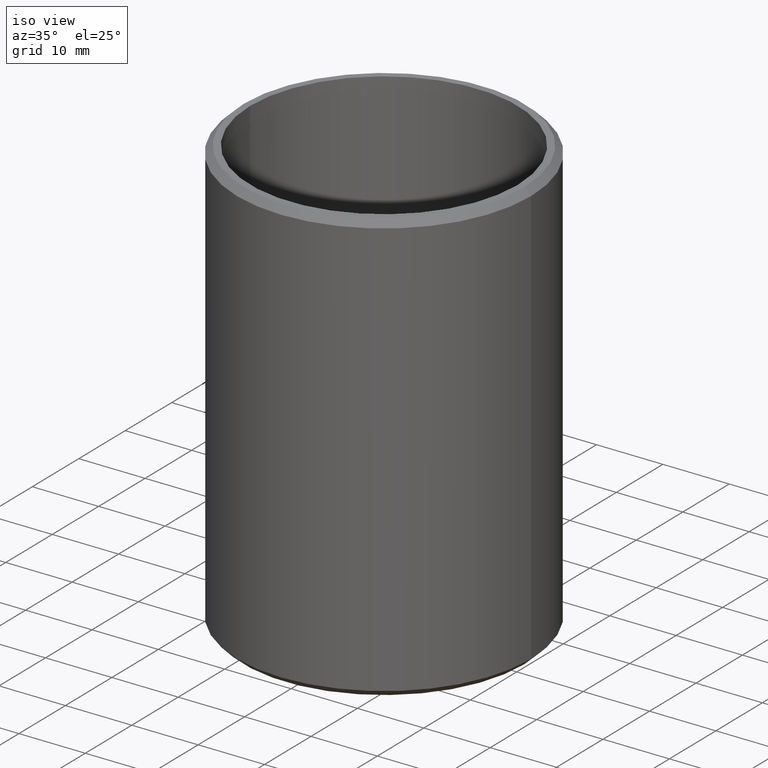
[diagram: clean part render]
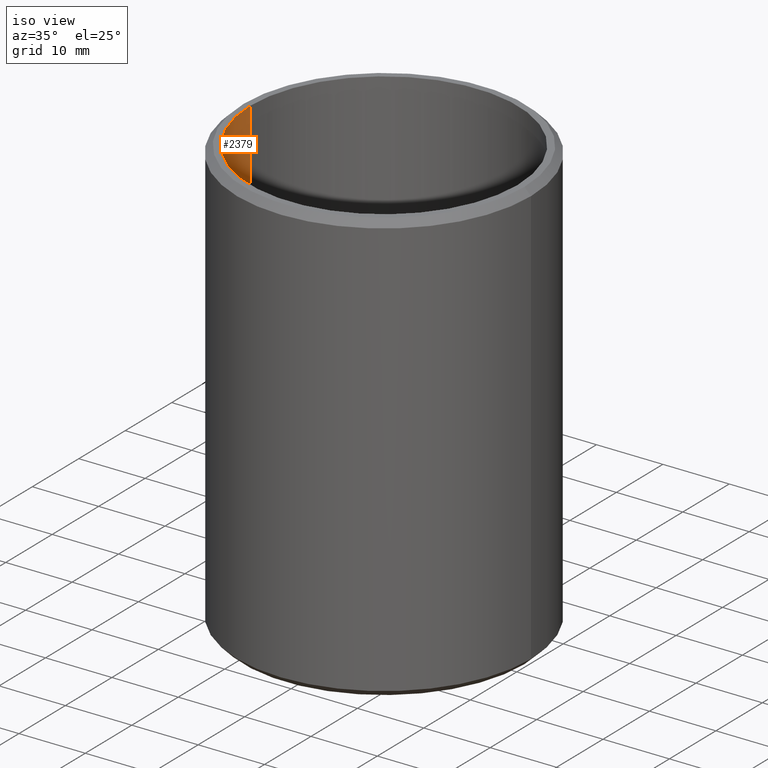
[diagram: same view with one face highlighted and labeled with its STEP entity id]
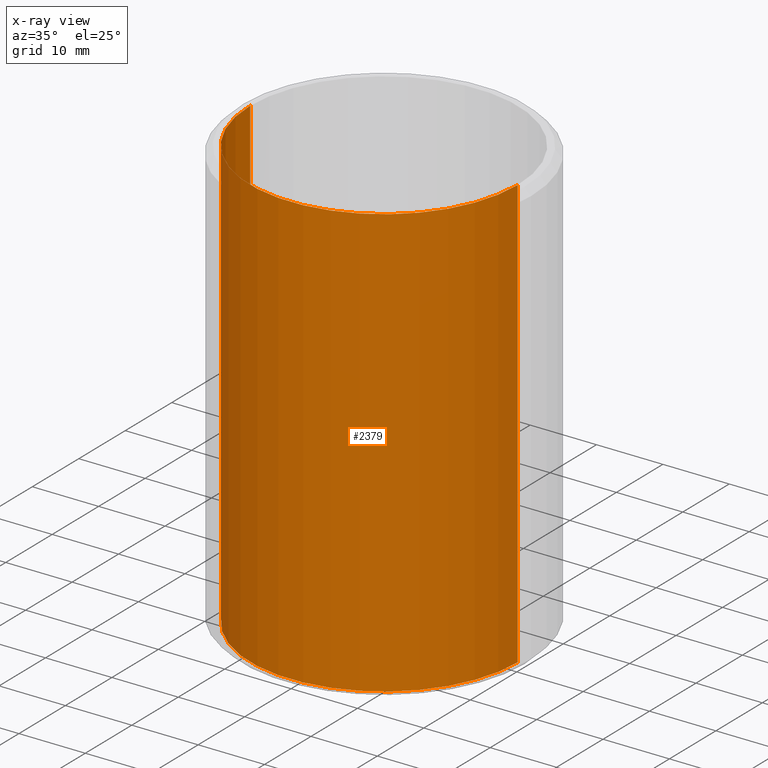
[diagram: x-ray of the same camera — body ghosted, the highlighted face saturated]
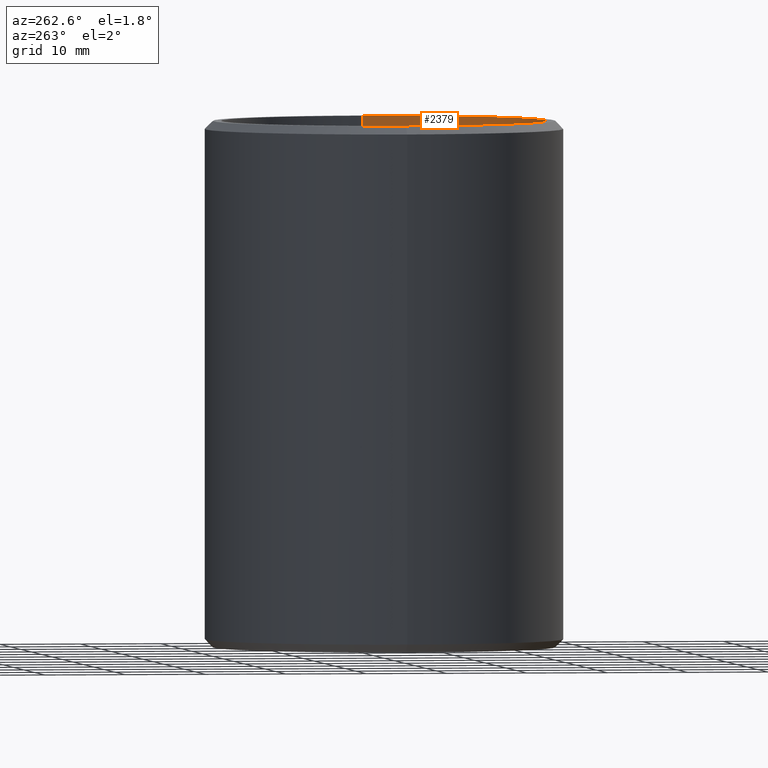
[diagram: same view with one face highlighted and labeled with its STEP entity id]
A machine part, iso view. The second image highlights one B-rep face of the part: STEP entity #2379.
The next image is the same camera in x-ray: the body ghosted, the highlighted face saturated — about 0% of this face is hidden behind the body in this view.
A second angle (auxiliary view) of the same face is appended — the face is thin or edge-on in the first view.
In plain terms, the highlighted cylindrical surface (partial cylindrical patch) has radius 20.15 mm, axis along (-0, -0, -1).
Its self-contained STEP definition (entity closure, byte-faithful):
#38 = CARTESIAN_POINT ( 'NONE',  ( 20.15000000000000200, 2.467663300281916900E-015, 32.50000000000000000 ) ) ;
#50 = FACE_OUTER_BOUND ( 'NONE', #427, .T. ) ;
#52 = ORIENTED_EDGE ( 'NONE', *, *, #9156, .T. ) ;
#63 = B_SPLINE_CURVE_WITH_KNOTS ( 'NONE', 3,
 ( #435, #3930, #4584, #1239 ),
 .UNSPECIFIED., .F., .F.,
 ( 4, 4 ),
 ( 0.0000000000000000000, 0.0001645194072461675800 ),
 .UNSPECIFIED. ) ;
#80 = LINE ( 'NONE', #677, #9781 ) ;
#89 = VECTOR ( 'NONE', #1242, 1000.000000000000000 ) ;
#120 = CARTESIAN_POINT ( 'NONE',  ( -20.14999999999999900, -1.551054894538229500E-016, 32.50000000000000000 ) ) ;
#127 = DIRECTION ( 'NONE',  ( -0.0000000000000000000, -0.0000000000000000000, -1.000000000000000000 ) ) ;
#131 = EDGE_CURVE ( 'NONE', #8170, #1964, #852, .T. ) ;
#153 = CARTESIAN_POINT ( 'NONE',  ( -20.14999999999999900, -1.551054894538230000E-016, 0.4324919871794909400 ) ) ;
#202 = VECTOR ( 'NONE', #2505, 1000.000000000000000 ) ;
#247 = ORIENTED_EDGE ( 'NONE', *, *, #2295, .F. ) ;
#324 = ORIENTED_EDGE ( 'NONE', *, *, #953, .T. ) ;
#332 = VECTOR ( 'NONE', #10108, 1000.000000000000000 ) ;
#340 = LINE ( 'NONE', #8881, #10731 ) ;
#427 = EDGE_LOOP ( 'NONE', ( #8159, #7741, #9570, #8017, #1892, #4356, #10506, #805, #3978, #52, #10746, #496, #7833, #6111, #10402, #9390, #2664, #8285, #4130, #247, #4022, #8741, #1336, #3733, #1304, #9673, #9023, #9043, #5617, #324, #4254, #5936, #8752, #2734, #583, #8421, #3750, #2469, #7663, #1928, #10694, #4709, #4959, #9430, #9618, #6819, #8871, #8601, #7419, #4971, #9617, #2637, #2279, #1713 ) ) ;
#435 = CARTESIAN_POINT ( 'NONE',  ( -20.14997144836235800, -0.03392094017094032800, -8.557882194845083400 ) ) ;
#448 = DIRECTION ( 'NONE',  ( 0.0000000000000000000, 0.0000000000000000000, 1.000000000000000000 ) ) ;
#452 = CARTESIAN_POINT ( 'NONE',  ( -20.14999999999999900, -1.551054894538229500E-016, 32.50000000000000000 ) ) ;
#496 = ORIENTED_EDGE ( 'NONE', *, *, #5192, .T. ) ;
#552 = CARTESIAN_POINT ( 'NONE',  ( -20.14999286209438300, -0.01696047008547024000, 3.066134982638891900 ) ) ;
#583 = ORIENTED_EDGE ( 'NONE', *, *, #3464, .T. ) ;
#597 = CARTESIAN_POINT ( 'NONE',  ( 0.0000000000000000000, 0.0000000000000000000, 32.50000000000000000 ) ) ;
#621 = CARTESIAN_POINT ( 'NONE',  ( -20.14999999999999900, -1.551054894538229500E-016, 8.912727029914528000 ) ) ;
#672 = DIRECTION ( 'NONE',  ( -0.0000000000000000000, -0.0000000000000000000, -1.000000000000000000 ) ) ;
#677 = CARTESIAN_POINT ( 'NONE',  ( -20.15000000000000200, 0.0000000000000000000, 32.50000000000000000 ) ) ;
#711 = DIRECTION ( 'NONE',  ( -0.0000000000000000000, -0.0000000000000000000, -1.000000000000000000 ) ) ;
#736 = CIRCLE ( 'NONE', #10193, 20.15000000000000200 ) ;
#758 = CARTESIAN_POINT ( 'NONE',  ( -20.14999286209438300, -0.01696047008547024000, 3.066134982638891900 ) ) ;
#760 = EDGE_CURVE ( 'NONE', #10067, #7401, #3185, .T. ) ;
#794 = AXIS2_PLACEMENT_3D ( 'NONE', #5901, #900, #6676 ) ;
#805 = ORIENTED_EDGE ( 'NONE', *, *, #9048, .T. ) ;
#811 = VECTOR ( 'NONE', #8329, 1000.000000000000000 ) ;
#834 = LINE ( 'NONE', #2320, #3713 ) ;
#852 = LINE ( 'NONE', #9220, #3465 ) ;
#871 = VERTEX_POINT ( 'NONE', #1807 ) ;
#900 = DIRECTION ( 'NONE',  ( -0.0000000000000000000, -0.0000000000000000000, -1.000000000000000000 ) ) ;
#953 = EDGE_CURVE ( 'NONE', #10138, #4212, #9780, .T. ) ;
#954 = DIRECTION ( 'NONE',  ( 0.0000000000000000000, 0.0000000000000000000, 1.000000000000000000 ) ) ;
#1034 = CARTESIAN_POINT ( 'NONE',  ( -20.14999286209438300, -0.01696047008547024000, 6.034217247596156000 ) ) ;
#1036 = CARTESIAN_POINT ( 'NONE',  ( -20.14999999999999900, -1.551054894538229500E-016, 6.775707799145304300 ) ) ;
#1052 = DIRECTION ( 'NONE',  ( 0.0000000000000000000, 0.0000000000000000000, 1.000000000000000000 ) ) ;
#1081 = LINE ( 'NONE', #1695, #9653 ) ;
#1171 = VERTEX_POINT ( 'NONE', #2079 ) ;
#1185 = VECTOR ( 'NONE', #9342, 1000.000000000000000 ) ;
#1187 = LINE ( 'NONE', #3349, #202 ) ;
#1197 = VECTOR ( 'NONE', #2135, 1000.000000000000000 ) ;
#1201 = LINE ( 'NONE', #2853, #3716 ) ;
#1215 = B_SPLINE_CURVE_WITH_KNOTS ( 'NONE', 3,
 ( #7137, #7884, #2100, #6395 ),
 .UNSPECIFIED., .F., .F.,
 ( 4, 4 ),
 ( 0.0003122492481902185000, 0.0004517216255971111000 ),
 .UNSPECIFIED. ) ;
#1217 = CARTESIAN_POINT ( 'NONE',  ( -20.14999999999999500, -1.225550795558565800E-016, -0.9890523481114827900 ) ) ;
#1239 = CARTESIAN_POINT ( 'NONE',  ( -20.15000000000001300, -6.753728266472703100E-013, -8.397296406759828400 ) ) ;
#1242 = DIRECTION ( 'NONE',  ( 0.0000000000000000000, 0.0000000000000000000, 1.000000000000000000 ) ) ;
#1288 = CARTESIAN_POINT ( 'NONE',  ( -20.14999999999999900, -0.01147758787933929700, 3.156757813504496500 ) ) ;
#1304 = ORIENTED_EDGE ( 'NONE', *, *, #10739, .F. ) ;
#1310 = CARTESIAN_POINT ( 'NONE',  ( -20.14999999999999900, -1.551054894538229500E-016, 5.249265491452992400 ) ) ;
#1336 = ORIENTED_EDGE ( 'NONE', *, *, #5031, .F. ) ;
#1349 = VECTOR ( 'NONE', #2421, 1000.000000000000000 ) ;
#1352 = DIRECTION ( 'NONE',  ( -0.0000000000000000000, -0.0000000000000000000, -1.000000000000000000 ) ) ;
#1364 = CARTESIAN_POINT ( 'NONE',  ( -20.14999999999999900, -1.551054894538230000E-016, -7.725494123931619900 ) ) ;
#1397 = DIRECTION ( 'NONE',  ( 1.000000000000000000, 0.0000000000000000000, 0.0000000000000000000 ) ) ;
#1460 = CARTESIAN_POINT ( 'NONE',  ( -20.14999999999999500, -0.02204698266551590600, -1.952746161208339400 ) ) ;
#1472 = EDGE_CURVE ( 'NONE', #6260, #4212, #1187, .T. ) ;
#1505 = CARTESIAN_POINT ( 'NONE',  ( -20.15000000000000200, 0.0000000000000000000, 32.50000000000000000 ) ) ;
#1508 = CARTESIAN_POINT ( 'NONE',  ( -20.14999380398186400, -0.01584145475456734400, 7.660271664747757100 ) ) ;
#1533 = CARTESIAN_POINT ( 'NONE',  ( -20.15000000000000200, -4.692922516791407000E-014, 2.928196923410093100 ) ) ;
#1603 = EDGE_CURVE ( 'NONE', #3290, #7401, #1848, .T. ) ;
#1635 = CARTESIAN_POINT ( 'NONE',  ( -20.15000000000000200, 0.0000000000000000000, 32.50000000000000000 ) ) ;
#1695 = CARTESIAN_POINT ( 'NONE',  ( -20.15000000000000200, 0.0000000000000000000, 32.50000000000000000 ) ) ;
#1702 = CARTESIAN_POINT ( 'NONE',  ( -20.15000000000000200, -4.695548318927895300E-014, 5.896279188367356200 ) ) ;
#1713 = ORIENTED_EDGE ( 'NONE', *, *, #7831, .F. ) ;
#1737 = VERTEX_POINT ( 'NONE', #3569 ) ;
#1766 = EDGE_CURVE ( 'NONE', #8533, #3064, #7933, .T. ) ;
#1767 = VERTEX_POINT ( 'NONE', #3742 ) ;
#1807 = CARTESIAN_POINT ( 'NONE',  ( -20.15000000000001300, -6.753728266472703100E-013, -8.397296406759828400 ) ) ;
#1820 = CARTESIAN_POINT ( 'NONE',  ( -20.14999999999999900, -1.551054894538230000E-016, 2.671274038461541400 ) ) ;
#1848 = LINE ( 'NONE', #1635, #8248 ) ;
#1864 = VERTEX_POINT ( 'NONE', #2799 ) ;
#1892 = ORIENTED_EDGE ( 'NONE', *, *, #10347, .T. ) ;
#1923 = CARTESIAN_POINT ( 'NONE',  ( -20.14997144836235800, -0.03392094017094032800, -8.557882194845083400 ) ) ;
#1928 = ORIENTED_EDGE ( 'NONE', *, *, #9026, .F. ) ;
#1944 = CARTESIAN_POINT ( 'NONE',  ( -20.14997144836235800, -0.03392094017094032800, -1.841536040998927600 ) ) ;
#1956 = VECTOR ( 'NONE', #672, 1000.000000000000000 ) ;
#1964 = VERTEX_POINT ( 'NONE', #1364 ) ;
#2070 = EDGE_CURVE ( 'NONE', #9325, #1767, #2618, .T. ) ;
#2079 = CARTESIAN_POINT ( 'NONE',  ( -20.14999999999999900, -1.551054894538229500E-016, -7.844217414529911300 ) ) ;
#2100 = CARTESIAN_POINT ( 'NONE',  ( -20.14999377879606300, -0.01587137689652232800, 3.019395627059516600 ) ) ;
#2135 = DIRECTION ( 'NONE',  ( -0.0000000000000000000, -0.0000000000000000000, -1.000000000000000000 ) ) ;
#2165 = CARTESIAN_POINT ( 'NONE',  ( -20.15000000000000900, 8.024103833841728600E-012, 7.753592224368534700 ) ) ;
#2212 = VERTEX_POINT ( 'NONE', #5060 ) ;
#2239 = LINE ( 'NONE', #6934, #10704 ) ;
#2279 = ORIENTED_EDGE ( 'NONE', *, *, #2397, .T. ) ;
#2295 = EDGE_CURVE ( 'NONE', #6399, #10463, #6038, .T. ) ;
#2311 = CARTESIAN_POINT ( 'NONE',  ( -20.15000000000000200, 0.0000000000000000000, -32.50000000000000000 ) ) ;
#2320 = CARTESIAN_POINT ( 'NONE',  ( -20.15000000000000200, 0.0000000000000000000, 32.50000000000000000 ) ) ;
#2333 = CARTESIAN_POINT ( 'NONE',  ( -20.15000000000000200, -3.381779041912794100E-016, -2.002959115374386600 ) ) ;
#2341 = CARTESIAN_POINT ( 'NONE',  ( -20.15000000000000900, 8.024103833841728600E-012, 7.753592224368534700 ) ) ;
#2377 = LINE ( 'NONE', #2596, #9666 ) ;
#2379 = ADVANCED_FACE ( 'NONE', ( #50 ), #3150, .F. ) ;
#2397 = EDGE_CURVE ( 'NONE', #2212, #8524, #3815, .T. ) ;
#2398 = CARTESIAN_POINT ( 'NONE',  ( -20.15000000000000200, 0.0000000000000000000, 32.50000000000000000 ) ) ;
#2421 = DIRECTION ( 'NONE',  ( -0.0000000000000000000, -0.0000000000000000000, -1.000000000000000000 ) ) ;
#2444 = CARTESIAN_POINT ( 'NONE',  ( -20.14999999999999900, -1.551054894538229500E-016, 1.161792200854702800 ) ) ;
#2469 = ORIENTED_EDGE ( 'NONE', *, *, #2070, .F. ) ;
#2505 = DIRECTION ( 'NONE',  ( -0.0000000000000000000, -0.0000000000000000000, -1.000000000000000000 ) ) ;
#2529 = EDGE_CURVE ( 'NONE', #8636, #3895, #6396, .T. ) ;
#2596 = CARTESIAN_POINT ( 'NONE',  ( -20.15000000000000200, 0.0000000000000000000, 32.50000000000000000 ) ) ;
#2597 = VERTEX_POINT ( 'NONE', #5443 ) ;
#2612 = LINE ( 'NONE', #9815, #5503 ) ;
#2618 = LINE ( 'NONE', #4905, #10294 ) ;
#2637 = ORIENTED_EDGE ( 'NONE', *, *, #8101, .F. ) ;
#2654 = DIRECTION ( 'NONE',  ( -0.0000000000000000000, -0.0000000000000000000, -1.000000000000000000 ) ) ;
#2664 = ORIENTED_EDGE ( 'NONE', *, *, #1603, .F. ) ;
#2734 = ORIENTED_EDGE ( 'NONE', *, *, #3427, .T. ) ;
#2751 = CARTESIAN_POINT ( 'NONE',  ( -20.14999999999999100, -6.751678446740345600E-013, -1.680950252913672600 ) ) ;
#2799 = CARTESIAN_POINT ( 'NONE',  ( -20.14999999999999900, -1.551054894538229500E-016, -5.198384081196577400 ) ) ;
#2819 = EDGE_CURVE ( 'NONE', #6487, #6167, #3430, .T. ) ;
#2853 = CARTESIAN_POINT ( 'NONE',  ( -20.14999999999999900, -1.551054894538229500E-016, 32.50000000000000000 ) ) ;
#2857 = DIRECTION ( 'NONE',  ( -0.0000000000000000000, -0.0000000000000000000, -1.000000000000000000 ) ) ;
#2889 = CARTESIAN_POINT ( 'NONE',  ( -20.14999368746909500, -0.01597987847093923500, 7.563818216957719700 ) ) ;
#2898 = CARTESIAN_POINT ( 'NONE',  ( -20.14999286209438300, -0.01696047008547024000, 6.034217247596156000 ) ) ;
#2903 = LINE ( 'NONE', #7197, #1197 ) ;
#2905 = CARTESIAN_POINT ( 'NONE',  ( -20.15000000000000200, 5.585788310942519100E-012, 3.200599436973382800 ) ) ;
#2924 = EDGE_CURVE ( 'NONE', #2597, #10271, #1081, .T. ) ;
#2970 = B_SPLINE_CURVE_WITH_KNOTS ( 'NONE', 3,
 ( #2333, #1460, #4925, #4044 ),
 .UNSPECIFIED., .F., .F.,
 ( 4, 4 ),
 ( 0.0007601041430060417400, 0.0009231148281855330100 ),
 .UNSPECIFIED. ) ;
#2976 = DIRECTION ( 'NONE',  ( 0.0000000000000000000, 0.0000000000000000000, 1.000000000000000000 ) ) ;
#2996 = CARTESIAN_POINT ( 'NONE',  ( -20.14999999999999900, -1.551054894538229500E-016, 5.520633012820516300 ) ) ;
#3001 = DIRECTION ( 'NONE',  ( -0.0000000000000000000, -0.0000000000000000000, -1.000000000000000000 ) ) ;
#3012 = VERTEX_POINT ( 'NONE', #5101 ) ;
#3030 = VECTOR ( 'NONE', #4374, 1000.000000000000000 ) ;
#3064 = VERTEX_POINT ( 'NONE', #3826 ) ;
#3106 = CARTESIAN_POINT ( 'NONE',  ( -20.15000000000000200, 0.0000000000000000000, 32.50000000000000000 ) ) ;
#3123 = DIRECTION ( 'NONE',  ( 0.0000000000000000000, 0.0000000000000000000, 1.000000000000000000 ) ) ;
#3125 = EDGE_CURVE ( 'NONE', #3290, #9786, #2970, .T. ) ;
#3150 = CYLINDRICAL_SURFACE ( 'NONE', #794, 20.15000000000000200 ) ;
#3175 = VECTOR ( 'NONE', #6134, 1000.000000000000000 ) ;
#3185 = LINE ( 'NONE', #6272, #6725 ) ;
#3268 = LINE ( 'NONE', #7573, #5235 ) ;
#3278 = VERTEX_POINT ( 'NONE', #6670 ) ;
#3290 = VERTEX_POINT ( 'NONE', #10042 ) ;
#3326 = DIRECTION ( 'NONE',  ( -0.0000000000000000000, -0.0000000000000000000, -1.000000000000000000 ) ) ;
#3336 = VERTEX_POINT ( 'NONE', #1820 ) ;
#3349 = CARTESIAN_POINT ( 'NONE',  ( -20.15000000000000200, 0.0000000000000000000, 32.50000000000000000 ) ) ;
#3368 = AXIS2_PLACEMENT_3D ( 'NONE', #6076, #1052, #6922 ) ;
#3427 = EDGE_CURVE ( 'NONE', #10531, #7985, #1215, .T. ) ;
#3430 = LINE ( 'NONE', #38, #1956 ) ;
#3452 = CARTESIAN_POINT ( 'NONE',  ( -20.14999999999999900, -1.551054894538229500E-016, 2.552550747863251000 ) ) ;
#3464 = EDGE_CURVE ( 'NONE', #7985, #5346, #4142, .T. ) ;
#3465 = VECTOR ( 'NONE', #5122, 1000.000000000000000 ) ;
#3481 = EDGE_CURVE ( 'NONE', #5945, #6487, #736, .T. ) ;
#3508 = CARTESIAN_POINT ( 'NONE',  ( -20.14999999999999900, -1.551054894538229500E-016, 1.043068910256413000 ) ) ;
#3510 = DIRECTION ( 'NONE',  ( -0.0000000000000000000, -0.0000000000000000000, -1.000000000000000000 ) ) ;
#3539 = DIRECTION ( 'NONE',  ( 0.0000000000000000000, 0.0000000000000000000, 1.000000000000000000 ) ) ;
#3569 = CARTESIAN_POINT ( 'NONE',  ( -20.14999999999999900, -1.551054894538230000E-016, 5.639356303418805900 ) ) ;
#3593 = LINE ( 'NONE', #5209, #332 ) ;
#3594 = CARTESIAN_POINT ( 'NONE',  ( -20.14997281441102200, -0.03310946968896705900, -8.613626592312645200 ) ) ;
#3713 = VECTOR ( 'NONE', #9809, 1000.000000000000000 ) ;
#3716 = VECTOR ( 'NONE', #448, 1000.000000000000000 ) ;
#3733 = ORIENTED_EDGE ( 'NONE', *, *, #9084, .T. ) ;
#3742 = CARTESIAN_POINT ( 'NONE',  ( -20.14999999999999900, -1.551054894538230000E-016, 3.926348824786327600 ) ) ;
#3749 = CARTESIAN_POINT ( 'NONE',  ( -20.15000000000000600, -0.01147758787933904500, 6.124840078461767600 ) ) ;
#3750 = ORIENTED_EDGE ( 'NONE', *, *, #6821, .T. ) ;
#3759 = VERTEX_POINT ( 'NONE', #9188 ) ;
#3765 = CARTESIAN_POINT ( 'NONE',  ( -20.14999390340796400, -0.01572333095512677000, 3.111699485791281200 ) ) ;
#3789 = CARTESIAN_POINT ( 'NONE',  ( -20.15000000000000200, 0.0000000000000000000, 32.50000000000000000 ) ) ;
#3798 = LINE ( 'NONE', #8890, #7330 ) ;
#3813 = EDGE_CURVE ( 'NONE', #6399, #8636, #4456, .T. ) ;
#3815 = LINE ( 'NONE', #7511, #811 ) ;
#3826 = CARTESIAN_POINT ( 'NONE',  ( -20.14999286209438300, -0.01696047008547024000, 7.612335987580130400 ) ) ;
#3851 = CARTESIAN_POINT ( 'NONE',  ( -20.15000000000000200, 0.0000000000000000000, 32.50000000000000000 ) ) ;
#3880 = DIRECTION ( 'NONE',  ( 0.0000000000000000000, 0.0000000000000000000, 1.000000000000000000 ) ) ;
#3895 = VERTEX_POINT ( 'NONE', #6911 ) ;
#3913 = CARTESIAN_POINT ( 'NONE',  ( -20.14999999999999900, -1.551054894538229500E-016, 32.50000000000000000 ) ) ;
#3930 = CARTESIAN_POINT ( 'NONE',  ( -20.14997302566570500, -0.03298397859918617700, -8.502422365785587700 ) ) ;
#3978 = ORIENTED_EDGE ( 'NONE', *, *, #131, .F. ) ;
#4022 = ORIENTED_EDGE ( 'NONE', *, *, #3813, .T. ) ;
#4031 = CARTESIAN_POINT ( 'NONE',  ( -20.14999999999999900, -1.551054894538229500E-016, -2.942641559829053800 ) ) ;
#4044 = CARTESIAN_POINT ( 'NONE',  ( -20.14997144836235800, -0.03392094017094032800, -1.841536040998927600 ) ) ;
#4072 = LINE ( 'NONE', #5787, #5615 ) ;
#4085 = LINE ( 'NONE', #5156, #5489 ) ;
#4097 = VERTEX_POINT ( 'NONE', #2996 ) ;
#4130 = ORIENTED_EDGE ( 'NONE', *, *, #5146, .T. ) ;
#4142 = B_SPLINE_CURVE_WITH_KNOTS ( 'NONE', 3,
 ( #552, #3765, #1288, #2905 ),
 .UNSPECIFIED., .F., .F.,
 ( 4, 4 ),
 ( 0.0000000000000000000, 0.0001354148045367300000 ),
 .UNSPECIFIED. ) ;
#4212 = VERTEX_POINT ( 'NONE', #8565 ) ;
#4254 = ORIENTED_EDGE ( 'NONE', *, *, #1472, .F. ) ;
#4263 = B_SPLINE_CURVE_WITH_KNOTS ( 'NONE', 3,
 ( #8961, #1508, #7372, #2341 ),
 .UNSPECIFIED., .F., .F.,
 ( 4, 4 ),
 ( 0.0000000000000000000, 0.0001419623448056277400 ),
 .UNSPECIFIED. ) ;
#4348 = CARTESIAN_POINT ( 'NONE',  ( -20.14999999999999900, -1.551054894538229500E-016, 32.50000000000000000 ) ) ;
#4356 = ORIENTED_EDGE ( 'NONE', *, *, #9578, .T. ) ;
#4363 = LINE ( 'NONE', #3913, #4897 ) ;
#4374 = DIRECTION ( 'NONE',  ( -0.0000000000000000000, -0.0000000000000000000, -1.000000000000000000 ) ) ;
#4376 = CARTESIAN_POINT ( 'NONE',  ( -20.14999999999999500, -0.02342429986473440800, -0.9299172887044335800 ) ) ;
#4416 = EDGE_CURVE ( 'NONE', #1171, #871, #6745, .T. ) ;
#4455 = CARTESIAN_POINT ( 'NONE',  ( -20.15000000000000200, 0.0000000000000000000, 32.50000000000000000 ) ) ;
#4456 = B_SPLINE_CURVE_WITH_KNOTS ( 'NONE', 3,
 ( #10094, #4376, #7693, #8511 ),
 .UNSPECIFIED., .F., .F.,
 ( 4, 4 ),
 ( 0.0005408839186969652100, 0.0007297659987384389100 ),
 .UNSPECIFIED. ) ;
#4536 = DIRECTION ( 'NONE',  ( 0.0000000000000000000, 0.0000000000000000000, 1.000000000000000000 ) ) ;
#4584 = CARTESIAN_POINT ( 'NONE',  ( -20.15000000000000900, -0.02309534643421752900, -8.447094135429775700 ) ) ;
#4588 = CARTESIAN_POINT ( 'NONE',  ( -20.14999999999999900, -1.551054894538230000E-016, 4.587807158119661100 ) ) ;
#4601 = CARTESIAN_POINT ( 'NONE',  ( -20.14999999999999100, -0.02309534643421494100, -1.730747981583616900 ) ) ;
#4653 = EDGE_CURVE ( 'NONE', #8424, #1737, #7779, .T. ) ;
#4709 = ORIENTED_EDGE ( 'NONE', *, *, #5128, .F. ) ;
#4724 = B_SPLINE_CURVE_WITH_KNOTS ( 'NONE', 3,
 ( #8553, #7810, #3594, #8582 ),
 .UNSPECIFIED., .F., .F.,
 ( 4, 4 ),
 ( 0.0007601041430061211000, 0.0009231148281856403500 ),
 .UNSPECIFIED. ) ;
#4799 = VERTEX_POINT ( 'NONE', #7206 ) ;
#4890 = LINE ( 'NONE', #4348, #6861 ) ;
#4897 = VECTOR ( 'NONE', #9831, 1000.000000000000000 ) ;
#4905 = CARTESIAN_POINT ( 'NONE',  ( -20.15000000000000200, 0.0000000000000000000, 32.50000000000000000 ) ) ;
#4925 = CARTESIAN_POINT ( 'NONE',  ( -20.14997281441103600, -0.03310946968896726100, -1.897280438466490300 ) ) ;
#4940 = CARTESIAN_POINT ( 'NONE',  ( -20.15000000000000200, 0.0000000000000000000, 32.50000000000000000 ) ) ;
#4959 = ORIENTED_EDGE ( 'NONE', *, *, #8556, .T. ) ;
#4971 = ORIENTED_EDGE ( 'NONE', *, *, #1766, .T. ) ;
#5031 = EDGE_CURVE ( 'NONE', #5411, #3895, #9939, .T. ) ;
#5038 = VECTOR ( 'NONE', #2857, 1000.000000000000000 ) ;
#5041 = VECTOR ( 'NONE', #10382, 1000.000000000000000 ) ;
#5060 = CARTESIAN_POINT ( 'NONE',  ( -20.14999999999999900, -1.551054894538229500E-016, 8.794003739316238500 ) ) ;
#5095 = EDGE_CURVE ( 'NONE', #9367, #5260, #6456, .T. ) ;
#5101 = CARTESIAN_POINT ( 'NONE',  ( -20.14999999999999900, -1.551054894538229500E-016, 6.894431089743593900 ) ) ;
#5117 = CARTESIAN_POINT ( 'NONE',  ( -20.14999286209438300, -0.01696047008547024000, 6.034217247596156000 ) ) ;
#5122 = DIRECTION ( 'NONE',  ( -0.0000000000000000000, -0.0000000000000000000, -1.000000000000000000 ) ) ;
#5128 = EDGE_CURVE ( 'NONE', #4097, #9522, #8266, .T. ) ;
#5139 = LINE ( 'NONE', #8768, #7605 ) ;
#5146 = EDGE_CURVE ( 'NONE', #9786, #10463, #5391, .T. ) ;
#5152 = VECTOR ( 'NONE', #10386, 1000.000000000000000 ) ;
#5156 = CARTESIAN_POINT ( 'NONE',  ( -20.15000000000000200, 0.0000000000000000000, 32.50000000000000000 ) ) ;
#5189 = EDGE_CURVE ( 'NONE', #5417, #9299, #6993, .T. ) ;
#5192 = EDGE_CURVE ( 'NONE', #1864, #10271, #6069, .T. ) ;
#5194 = VERTEX_POINT ( 'NONE', #2165 ) ;
#5209 = CARTESIAN_POINT ( 'NONE',  ( -20.14999999999999900, -1.551054894538229500E-016, 32.50000000000000000 ) ) ;
#5235 = VECTOR ( 'NONE', #127, 1000.000000000000000 ) ;
#5244 = CARTESIAN_POINT ( 'NONE',  ( -20.14999390340796400, -0.01572333095512669400, 6.079781750748548300 ) ) ;
#5260 = VERTEX_POINT ( 'NONE', #2311 ) ;
#5263 = LINE ( 'NONE', #7827, #3030 ) ;
#5346 = VERTEX_POINT ( 'NONE', #8373 ) ;
#5378 = CARTESIAN_POINT ( 'NONE',  ( -20.14999999999999900, -1.551054894538229500E-016, -6.979233440170935900 ) ) ;
#5391 = B_SPLINE_CURVE_WITH_KNOTS ( 'NONE', 3,
 ( #1944, #9505, #4601, #2751 ),
 .UNSPECIFIED., .F., .F.,
 ( 4, 4 ),
 ( 0.0000000000000000000, 0.0001645194072461695800 ),
 .UNSPECIFIED. ) ;
#5406 = VECTOR ( 'NONE', #3001, 1000.000000000000000 ) ;
#5411 = VERTEX_POINT ( 'NONE', #7774 ) ;
#5417 = VERTEX_POINT ( 'NONE', #10197 ) ;
#5443 = CARTESIAN_POINT ( 'NONE',  ( -20.14999999999999900, -1.551054894538229500E-016, -3.960269764957259600 ) ) ;
#5450 = CARTESIAN_POINT ( 'NONE',  ( -20.14999999999999900, -1.551054894538229500E-016, 32.50000000000000000 ) ) ;
#5489 = VECTOR ( 'NONE', #6936, 1000.000000000000000 ) ;
#5493 = CARTESIAN_POINT ( 'NONE',  ( -20.14999999999999100, -6.751678446740345600E-013, -1.680950252913672600 ) ) ;
#5503 = VECTOR ( 'NONE', #711, 1000.000000000000000 ) ;
#5512 = EDGE_CURVE ( 'NONE', #8120, #9299, #10189, .T. ) ;
#5513 = VERTEX_POINT ( 'NONE', #4588 ) ;
#5532 = DIRECTION ( 'NONE',  ( -0.0000000000000000000, -0.0000000000000000000, -1.000000000000000000 ) ) ;
#5541 = VECTOR ( 'NONE', #6634, 1000.000000000000000 ) ;
#5615 = VECTOR ( 'NONE', #10763, 1000.000000000000000 ) ;
#5617 = ORIENTED_EDGE ( 'NONE', *, *, #6077, .F. ) ;
#5620 = EDGE_CURVE ( 'NONE', #5417, #3278, #340, .T. ) ;
#5746 = CARTESIAN_POINT ( 'NONE',  ( -20.14997144836235800, -0.03392094017094032800, -0.8021772335737118500 ) ) ;
#5787 = CARTESIAN_POINT ( 'NONE',  ( -20.14999999999999900, -1.551054894538229500E-016, 32.50000000000000000 ) ) ;
#5819 = CARTESIAN_POINT ( 'NONE',  ( -20.14997144836235800, -0.03392094017094032800, -1.841536040998927600 ) ) ;
#5857 = B_SPLINE_CURVE_WITH_KNOTS ( 'NONE', 3,
 ( #8436, #6238, #7087, #2898 ),
 .UNSPECIFIED., .F., .F.,
 ( 4, 4 ),
 ( 0.0003122492481902195300, 0.0004517216255971150500 ),
 .UNSPECIFIED. ) ;
#5875 = CARTESIAN_POINT ( 'NONE',  ( -20.14999999999999900, -1.551054894538230000E-016, -5.079660790598287800 ) ) ;
#5895 = VECTOR ( 'NONE', #9791, 1000.000000000000000 ) ;
#5901 = CARTESIAN_POINT ( 'NONE',  ( 0.0000000000000000000, 0.0000000000000000000, 32.50000000000000000 ) ) ;
#5904 = CARTESIAN_POINT ( 'NONE',  ( -20.15000000000000200, -1.220150960519819600E-015, -8.719305269220539500 ) ) ;
#5936 = ORIENTED_EDGE ( 'NONE', *, *, #6288, .T. ) ;
#5945 = VERTEX_POINT ( 'NONE', #3851 ) ;
#5969 = CARTESIAN_POINT ( 'NONE',  ( 20.15000000000000200, 2.467663300281916900E-015, -32.50000000000000000 ) ) ;
#5998 = EDGE_CURVE ( 'NONE', #4799, #5346, #2903, .T. ) ;
#6038 = LINE ( 'NONE', #6644, #7207 ) ;
#6047 = CARTESIAN_POINT ( 'NONE',  ( -20.14997144836235800, -0.03392094017094032800, -0.8021772335737118500 ) ) ;
#6069 = LINE ( 'NONE', #452, #9284 ) ;
#6076 = CARTESIAN_POINT ( 'NONE',  ( 0.0000000000000000000, 0.0000000000000000000, -32.50000000000000000 ) ) ;
#6077 = EDGE_CURVE ( 'NONE', #10138, #3278, #834, .T. ) ;
#6089 = CARTESIAN_POINT ( 'NONE',  ( -20.14997337153220200, -0.03277852438688779600, -0.7445069615221373600 ) ) ;
#6111 = ORIENTED_EDGE ( 'NONE', *, *, #6917, .T. ) ;
#6134 = DIRECTION ( 'NONE',  ( 0.0000000000000000000, 0.0000000000000000000, 1.000000000000000000 ) ) ;
#6167 = VERTEX_POINT ( 'NONE', #5969 ) ;
#6214 = EDGE_CURVE ( 'NONE', #6654, #9522, #4890, .T. ) ;
#6230 = VERTEX_POINT ( 'NONE', #153 ) ;
#6238 = CARTESIAN_POINT ( 'NONE',  ( -20.15000000000000200, -0.01155978152750052100, 5.941175103441199900 ) ) ;
#6239 = CARTESIAN_POINT ( 'NONE',  ( -20.15000000000000200, 0.0000000000000000000, 32.50000000000000000 ) ) ;
#6260 = VERTEX_POINT ( 'NONE', #3452 ) ;
#6272 = CARTESIAN_POINT ( 'NONE',  ( -20.14999999999999900, -1.551054894538229500E-016, 32.50000000000000000 ) ) ;
#6288 = EDGE_CURVE ( 'NONE', #6260, #3336, #8123, .T. ) ;
#6384 = CARTESIAN_POINT ( 'NONE',  ( -20.15000000000000900, 5.588188802315037800E-012, 6.168681701930656100 ) ) ;
#6395 = CARTESIAN_POINT ( 'NONE',  ( -20.14999286209438300, -0.01696047008547024000, 3.066134982638891900 ) ) ;
#6396 = B_SPLINE_CURVE_WITH_KNOTS ( 'NONE', 3,
 ( #6047, #6089, #6903, #6933 ),
 .UNSPECIFIED., .F., .F.,
 ( 4, 4 ),
 ( 0.0000000000000000000, 0.0001713056949087535700 ),
 .UNSPECIFIED. ) ;
#6399 = VERTEX_POINT ( 'NONE', #1217 ) ;
#6442 = LINE ( 'NONE', #10188, #1185 ) ;
#6456 = LINE ( 'NONE', #4455, #5038 ) ;
#6483 = VERTEX_POINT ( 'NONE', #1923 ) ;
#6487 = VERTEX_POINT ( 'NONE', #7044 ) ;
#6634 = DIRECTION ( 'NONE',  ( -0.0000000000000000000, -0.0000000000000000000, -1.000000000000000000 ) ) ;
#6644 = CARTESIAN_POINT ( 'NONE',  ( -20.15000000000000200, 0.0000000000000000000, 32.50000000000000000 ) ) ;
#6654 = VERTEX_POINT ( 'NONE', #8972 ) ;
#6670 = CARTESIAN_POINT ( 'NONE',  ( -20.14999999999999900, -1.551054894538230000E-016, 1.551883012820519400 ) ) ;
#6676 = DIRECTION ( 'NONE',  ( -1.000000000000000000, 0.0000000000000000000, 0.0000000000000000000 ) ) ;
#6725 = VECTOR ( 'NONE', #4536, 1000.000000000000000 ) ;
#6745 = LINE ( 'NONE', #4940, #1349 ) ;
#6819 = ORIENTED_EDGE ( 'NONE', *, *, #8166, .T. ) ;
#6821 = EDGE_CURVE ( 'NONE', #4799, #1767, #6442, .T. ) ;
#6837 = EDGE_CURVE ( 'NONE', #9347, #3012, #2239, .T. ) ;
#6861 = VECTOR ( 'NONE', #954, 1000.000000000000000 ) ;
#6903 = CARTESIAN_POINT ( 'NONE',  ( -20.14999999999999100, -0.02343688161277011900, -0.6869134115727753000 ) ) ;
#6911 = CARTESIAN_POINT ( 'NONE',  ( -20.15000000000000200, -5.251572509241140100E-013, -0.6345703059194158800 ) ) ;
#6917 = EDGE_CURVE ( 'NONE', #2597, #8828, #5139, .T. ) ;
#6922 = DIRECTION ( 'NONE',  ( 1.000000000000000000, 0.0000000000000000000, 0.0000000000000000000 ) ) ;
#6933 = CARTESIAN_POINT ( 'NONE',  ( -20.15000000000000200, -5.251572509241140100E-013, -0.6345703059194158800 ) ) ;
#6934 = CARTESIAN_POINT ( 'NONE',  ( -20.14999999999999900, -1.551054894538229500E-016, 32.50000000000000000 ) ) ;
#6936 = DIRECTION ( 'NONE',  ( -0.0000000000000000000, -0.0000000000000000000, -1.000000000000000000 ) ) ;
#6993 = LINE ( 'NONE', #3106, #7766 ) ;
#7044 = CARTESIAN_POINT ( 'NONE',  ( 20.15000000000000200, 2.467663300281916900E-015, 32.50000000000000000 ) ) ;
#7087 = CARTESIAN_POINT ( 'NONE',  ( -20.14999377879606300, -0.01587137689652239400, 5.987477892016780600 ) ) ;
#7107 = DIRECTION ( 'NONE',  ( 0.0000000000000000000, 0.0000000000000000000, 1.000000000000000000 ) ) ;
#7137 = CARTESIAN_POINT ( 'NONE',  ( -20.15000000000000200, -4.692922516791407000E-014, 2.928196923410093100 ) ) ;
#7148 = EDGE_CURVE ( 'NONE', #8533, #3012, #2612, .T. ) ;
#7197 = CARTESIAN_POINT ( 'NONE',  ( -20.15000000000000200, 0.0000000000000000000, 32.50000000000000000 ) ) ;
#7206 = CARTESIAN_POINT ( 'NONE',  ( -20.14999999999999900, -1.551054894538229500E-016, 3.807625534188035800 ) ) ;
#7207 = VECTOR ( 'NONE', #1352, 1000.000000000000000 ) ;
#7219 = CARTESIAN_POINT ( 'NONE',  ( -20.15000000000000200, 0.0000000000000000000, 32.50000000000000000 ) ) ;
#7330 = VECTOR ( 'NONE', #5532, 1000.000000000000000 ) ;
#7372 = CARTESIAN_POINT ( 'NONE',  ( -20.15000000000000600, -0.01193490577231303600, 7.707684648154367900 ) ) ;
#7382 = CARTESIAN_POINT ( 'NONE',  ( -20.14999999999999900, -1.551054894538229500E-016, 2.162459935897441500 ) ) ;
#7384 = EDGE_CURVE ( 'NONE', #5260, #6167, #10289, .T. ) ;
#7401 = VERTEX_POINT ( 'NONE', #10659 ) ;
#7419 = ORIENTED_EDGE ( 'NONE', *, *, #7148, .F. ) ;
#7497 = DIRECTION ( 'NONE',  ( -0.0000000000000000000, -0.0000000000000000000, -1.000000000000000000 ) ) ;
#7511 = CARTESIAN_POINT ( 'NONE',  ( -20.14999999999999900, -1.551054894538229500E-016, 32.50000000000000000 ) ) ;
#7573 = CARTESIAN_POINT ( 'NONE',  ( -20.15000000000000200, 0.0000000000000000000, 32.50000000000000000 ) ) ;
#7605 = VECTOR ( 'NONE', #7107, 1000.000000000000000 ) ;
#7663 = ORIENTED_EDGE ( 'NONE', *, *, #9862, .T. ) ;
#7693 = CARTESIAN_POINT ( 'NONE',  ( -20.14997242454613200, -0.03334106015659666500, -0.8661805105104609700 ) ) ;
#7741 = ORIENTED_EDGE ( 'NONE', *, *, #2819, .T. ) ;
#7766 = VECTOR ( 'NONE', #9721, 1000.000000000000000 ) ;
#7774 = CARTESIAN_POINT ( 'NONE',  ( -20.14999999999999900, -1.551054894538229500E-016, 0.3137686965812014300 ) ) ;
#7779 = LINE ( 'NONE', #7219, #5406 ) ;
#7810 = CARTESIAN_POINT ( 'NONE',  ( -20.15000000000000200, -0.02204698266552051300, -8.669092315054495400 ) ) ;
#7827 = CARTESIAN_POINT ( 'NONE',  ( -20.15000000000000200, 0.0000000000000000000, 32.50000000000000000 ) ) ;
#7831 = EDGE_CURVE ( 'NONE', #5945, #8524, #9110, .T. ) ;
#7833 = ORIENTED_EDGE ( 'NONE', *, *, #2924, .F. ) ;
#7871 = DIRECTION ( 'NONE',  ( -0.0000000000000000000, -0.0000000000000000000, -1.000000000000000000 ) ) ;
#7884 = CARTESIAN_POINT ( 'NONE',  ( -20.14999999999999500, -0.01155978152750077600, 2.973092838483934100 ) ) ;
#7933 = B_SPLINE_CURVE_WITH_KNOTS ( 'NONE', 3,
 ( #10768, #9867, #2889, #8840 ),
 .UNSPECIFIED., .F., .F.,
 ( 4, 4 ),
 ( 0.0004003663286076126200, 0.0005426826313908281400 ),
 .UNSPECIFIED. ) ;
#7965 = CARTESIAN_POINT ( 'NONE',  ( -20.14999999999999100, -1.065054728015024700E-013, 7.468995267329146000 ) ) ;
#7985 = VERTEX_POINT ( 'NONE', #758 ) ;
#8017 = ORIENTED_EDGE ( 'NONE', *, *, #5095, .F. ) ;
#8101 = EDGE_CURVE ( 'NONE', #2212, #5194, #4085, .T. ) ;
#8110 = VERTEX_POINT ( 'NONE', #5117 ) ;
#8120 = VERTEX_POINT ( 'NONE', #3508 ) ;
#8123 = LINE ( 'NONE', #120, #5152 ) ;
#8159 = ORIENTED_EDGE ( 'NONE', *, *, #3481, .T. ) ;
#8166 = EDGE_CURVE ( 'NONE', #8110, #9105, #9295, .T. ) ;
#8170 = VERTEX_POINT ( 'NONE', #5378 ) ;
#8248 = VECTOR ( 'NONE', #7497, 1000.000000000000000 ) ;
#8266 = LINE ( 'NONE', #6239, #8887 ) ;
#8285 = ORIENTED_EDGE ( 'NONE', *, *, #3125, .T. ) ;
#8329 = DIRECTION ( 'NONE',  ( 0.0000000000000000000, 0.0000000000000000000, 1.000000000000000000 ) ) ;
#8373 = CARTESIAN_POINT ( 'NONE',  ( -20.15000000000000200, 5.585788310942519100E-012, 3.200599436973382800 ) ) ;
#8421 = ORIENTED_EDGE ( 'NONE', *, *, #5998, .F. ) ;
#8424 = VERTEX_POINT ( 'NONE', #1702 ) ;
#8436 = CARTESIAN_POINT ( 'NONE',  ( -20.15000000000000200, -4.695548318927895300E-014, 5.896279188367356200 ) ) ;
#8439 = EDGE_CURVE ( 'NONE', #1864, #3759, #3268, .T. ) ;
#8508 = EDGE_CURVE ( 'NONE', #9347, #9105, #3798, .T. ) ;
#8511 = CARTESIAN_POINT ( 'NONE',  ( -20.14997144836235800, -0.03392094017094032800, -0.8021772335737118500 ) ) ;
#8524 = VERTEX_POINT ( 'NONE', #621 ) ;
#8533 = VERTEX_POINT ( 'NONE', #7965 ) ;
#8545 = CARTESIAN_POINT ( 'NONE',  ( -20.14999999999999900, -1.551054894538229500E-016, 4.469083867521369800 ) ) ;
#8553 = CARTESIAN_POINT ( 'NONE',  ( -20.15000000000000200, -1.220150960519819600E-015, -8.719305269220539500 ) ) ;
#8556 = EDGE_CURVE ( 'NONE', #4097, #1737, #4072, .T. ) ;
#8561 = CARTESIAN_POINT ( 'NONE',  ( -20.14999999999999900, -1.551054894538229500E-016, 32.50000000000000000 ) ) ;
#8565 = CARTESIAN_POINT ( 'NONE',  ( -20.14999999999999900, -1.551054894538229500E-016, 2.281183226495734600 ) ) ;
#8582 = CARTESIAN_POINT ( 'NONE',  ( -20.14997144836235800, -0.03392094017094032800, -8.557882194845083400 ) ) ;
#8601 = ORIENTED_EDGE ( 'NONE', *, *, #6837, .T. ) ;
#8636 = VERTEX_POINT ( 'NONE', #5746 ) ;
#8701 = CARTESIAN_POINT ( 'NONE',  ( -20.15000000000000900, 5.588188802315037800E-012, 6.168681701930656100 ) ) ;
#8741 = ORIENTED_EDGE ( 'NONE', *, *, #2529, .T. ) ;
#8752 = ORIENTED_EDGE ( 'NONE', *, *, #9329, .F. ) ;
#8756 = VECTOR ( 'NONE', #3880, 1000.000000000000000 ) ;
#8768 = CARTESIAN_POINT ( 'NONE',  ( -20.14999999999999900, -1.551054894538229500E-016, 32.50000000000000000 ) ) ;
#8818 = CARTESIAN_POINT ( 'NONE',  ( -20.14999999999999900, -1.551054894538229500E-016, 32.50000000000000000 ) ) ;
#8828 = VERTEX_POINT ( 'NONE', #10000 ) ;
#8840 = CARTESIAN_POINT ( 'NONE',  ( -20.14999286209438300, -0.01696047008547024000, 7.612335987580130400 ) ) ;
#8871 = ORIENTED_EDGE ( 'NONE', *, *, #8508, .F. ) ;
#8881 = CARTESIAN_POINT ( 'NONE',  ( -20.14999999999999900, -1.551054894538229500E-016, 32.50000000000000000 ) ) ;
#8887 = VECTOR ( 'NONE', #7871, 1000.000000000000000 ) ;
#8890 = CARTESIAN_POINT ( 'NONE',  ( -20.15000000000000200, 0.0000000000000000000, 32.50000000000000000 ) ) ;
#8959 = EDGE_CURVE ( 'NONE', #8424, #8110, #5857, .T. ) ;
#8961 = CARTESIAN_POINT ( 'NONE',  ( -20.14999286209438300, -0.01696047008547024000, 7.612335987580130400 ) ) ;
#8972 = CARTESIAN_POINT ( 'NONE',  ( -20.14999999999999900, -1.551054894538229500E-016, 5.130542200854702800 ) ) ;
#9014 = LINE ( 'NONE', #3789, #5041 ) ;
#9023 = ORIENTED_EDGE ( 'NONE', *, *, #5189, .F. ) ;
#9026 = EDGE_CURVE ( 'NONE', #6654, #5513, #9014, .T. ) ;
#9043 = ORIENTED_EDGE ( 'NONE', *, *, #5620, .T. ) ;
#9048 = EDGE_CURVE ( 'NONE', #1171, #1964, #1201, .T. ) ;
#9084 = EDGE_CURVE ( 'NONE', #5411, #6230, #10061, .T. ) ;
#9105 = VERTEX_POINT ( 'NONE', #6384 ) ;
#9110 = LINE ( 'NONE', #1505, #5895 ) ;
#9156 = EDGE_CURVE ( 'NONE', #8170, #3759, #4363, .T. ) ;
#9188 = CARTESIAN_POINT ( 'NONE',  ( -20.14999999999999900, -1.551054894538230000E-016, -6.080328525641023800 ) ) ;
#9220 = CARTESIAN_POINT ( 'NONE',  ( -20.15000000000000200, 0.0000000000000000000, 32.50000000000000000 ) ) ;
#9284 = VECTOR ( 'NONE', #2976, 1000.000000000000000 ) ;
#9295 = B_SPLINE_CURVE_WITH_KNOTS ( 'NONE', 3,
 ( #1034, #5244, #3749, #8701 ),
 .UNSPECIFIED., .F., .F.,
 ( 4, 4 ),
 ( 0.0000000000000000000, 0.0001354148045367399500 ),
 .UNSPECIFIED. ) ;
#9299 = VERTEX_POINT ( 'NONE', #2444 ) ;
#9325 = VERTEX_POINT ( 'NONE', #8545 ) ;
#9329 = EDGE_CURVE ( 'NONE', #10531, #3336, #2377, .T. ) ;
#9342 = DIRECTION ( 'NONE',  ( 0.0000000000000000000, 0.0000000000000000000, 1.000000000000000000 ) ) ;
#9347 = VERTEX_POINT ( 'NONE', #1036 ) ;
#9367 = VERTEX_POINT ( 'NONE', #5904 ) ;
#9390 = ORIENTED_EDGE ( 'NONE', *, *, #760, .T. ) ;
#9430 = ORIENTED_EDGE ( 'NONE', *, *, #4653, .F. ) ;
#9505 = CARTESIAN_POINT ( 'NONE',  ( -20.14997302566570500, -0.03298397859918612100, -1.786076211939432400 ) ) ;
#9522 = VERTEX_POINT ( 'NONE', #1310 ) ;
#9570 = ORIENTED_EDGE ( 'NONE', *, *, #7384, .F. ) ;
#9578 = EDGE_CURVE ( 'NONE', #6483, #871, #63, .T. ) ;
#9593 = EDGE_CURVE ( 'NONE', #10067, #8828, #80, .T. ) ;
#9611 = DIRECTION ( 'NONE',  ( 0.0000000000000000000, 0.0000000000000000000, 1.000000000000000000 ) ) ;
#9617 = ORIENTED_EDGE ( 'NONE', *, *, #10604, .T. ) ;
#9618 = ORIENTED_EDGE ( 'NONE', *, *, #8959, .T. ) ;
#9653 = VECTOR ( 'NONE', #2654, 1000.000000000000000 ) ;
#9666 = VECTOR ( 'NONE', #3510, 1000.000000000000000 ) ;
#9673 = ORIENTED_EDGE ( 'NONE', *, *, #5512, .T. ) ;
#9721 = DIRECTION ( 'NONE',  ( -0.0000000000000000000, -0.0000000000000000000, -1.000000000000000000 ) ) ;
#9780 = LINE ( 'NONE', #8561, #3175 ) ;
#9781 = VECTOR ( 'NONE', #10710, 1000.000000000000000 ) ;
#9786 = VERTEX_POINT ( 'NONE', #5819 ) ;
#9791 = DIRECTION ( 'NONE',  ( -0.0000000000000000000, -0.0000000000000000000, -1.000000000000000000 ) ) ;
#9809 = DIRECTION ( 'NONE',  ( -0.0000000000000000000, -0.0000000000000000000, -1.000000000000000000 ) ) ;
#9815 = CARTESIAN_POINT ( 'NONE',  ( -20.15000000000000200, 0.0000000000000000000, 32.50000000000000000 ) ) ;
#9831 = DIRECTION ( 'NONE',  ( 0.0000000000000000000, 0.0000000000000000000, 1.000000000000000000 ) ) ;
#9862 = EDGE_CURVE ( 'NONE', #9325, #5513, #3593, .T. ) ;
#9867 = CARTESIAN_POINT ( 'NONE',  ( -20.15000000000000200, -0.01203961192464803900, 7.515649438472580700 ) ) ;
#9939 = LINE ( 'NONE', #2398, #5541 ) ;
#10000 = CARTESIAN_POINT ( 'NONE',  ( -20.14999999999999900, -1.551054894538230000E-016, -3.841546474358968200 ) ) ;
#10042 = CARTESIAN_POINT ( 'NONE',  ( -20.15000000000000200, -3.381779041912794100E-016, -2.002959115374386600 ) ) ;
#10061 = LINE ( 'NONE', #8818, #8756 ) ;
#10067 = VERTEX_POINT ( 'NONE', #4031 ) ;
#10094 = CARTESIAN_POINT ( 'NONE',  ( -20.14999999999999500, -1.225550795558565800E-016, -0.9890523481114827900 ) ) ;
#10108 = DIRECTION ( 'NONE',  ( 0.0000000000000000000, 0.0000000000000000000, 1.000000000000000000 ) ) ;
#10138 = VERTEX_POINT ( 'NONE', #7382 ) ;
#10188 = CARTESIAN_POINT ( 'NONE',  ( -20.14999999999999900, -1.551054894538229500E-016, 32.50000000000000000 ) ) ;
#10189 = LINE ( 'NONE', #5450, #89 ) ;
#10193 = AXIS2_PLACEMENT_3D ( 'NONE', #597, #9611, #1397 ) ;
#10197 = CARTESIAN_POINT ( 'NONE',  ( -20.14999999999999900, -1.551054894538229500E-016, 1.433159722222229900 ) ) ;
#10271 = VERTEX_POINT ( 'NONE', #5875 ) ;
#10289 = CIRCLE ( 'NONE', #3368, 20.15000000000000200 ) ;
#10294 = VECTOR ( 'NONE', #3326, 1000.000000000000000 ) ;
#10347 = EDGE_CURVE ( 'NONE', #9367, #6483, #4724, .T. ) ;
#10382 = DIRECTION ( 'NONE',  ( -0.0000000000000000000, -0.0000000000000000000, -1.000000000000000000 ) ) ;
#10386 = DIRECTION ( 'NONE',  ( 0.0000000000000000000, 0.0000000000000000000, 1.000000000000000000 ) ) ;
#10402 = ORIENTED_EDGE ( 'NONE', *, *, #9593, .F. ) ;
#10463 = VERTEX_POINT ( 'NONE', #5493 ) ;
#10506 = ORIENTED_EDGE ( 'NONE', *, *, #4416, .F. ) ;
#10531 = VERTEX_POINT ( 'NONE', #1533 ) ;
#10604 = EDGE_CURVE ( 'NONE', #3064, #5194, #4263, .T. ) ;
#10659 = CARTESIAN_POINT ( 'NONE',  ( -20.14999999999999900, -1.551054894538230000E-016, -2.823918269230766900 ) ) ;
#10694 = ORIENTED_EDGE ( 'NONE', *, *, #6214, .T. ) ;
#10704 = VECTOR ( 'NONE', #3539, 1000.000000000000000 ) ;
#10710 = DIRECTION ( 'NONE',  ( -0.0000000000000000000, -0.0000000000000000000, -1.000000000000000000 ) ) ;
#10731 = VECTOR ( 'NONE', #3123, 1000.000000000000000 ) ;
#10739 = EDGE_CURVE ( 'NONE', #8120, #6230, #5263, .T. ) ;
#10746 = ORIENTED_EDGE ( 'NONE', *, *, #8439, .F. ) ;
#10763 = DIRECTION ( 'NONE',  ( 0.0000000000000000000, 0.0000000000000000000, 1.000000000000000000 ) ) ;
#10768 = CARTESIAN_POINT ( 'NONE',  ( -20.14999999999999100, -1.065054728015024700E-013, 7.468995267329146000 ) ) ;